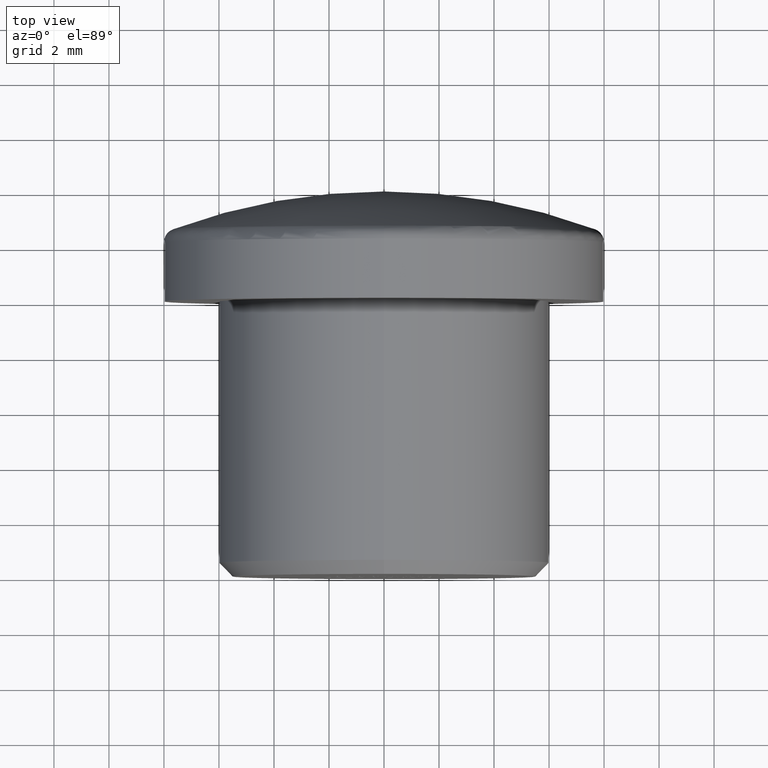
[diagram: clean part render]
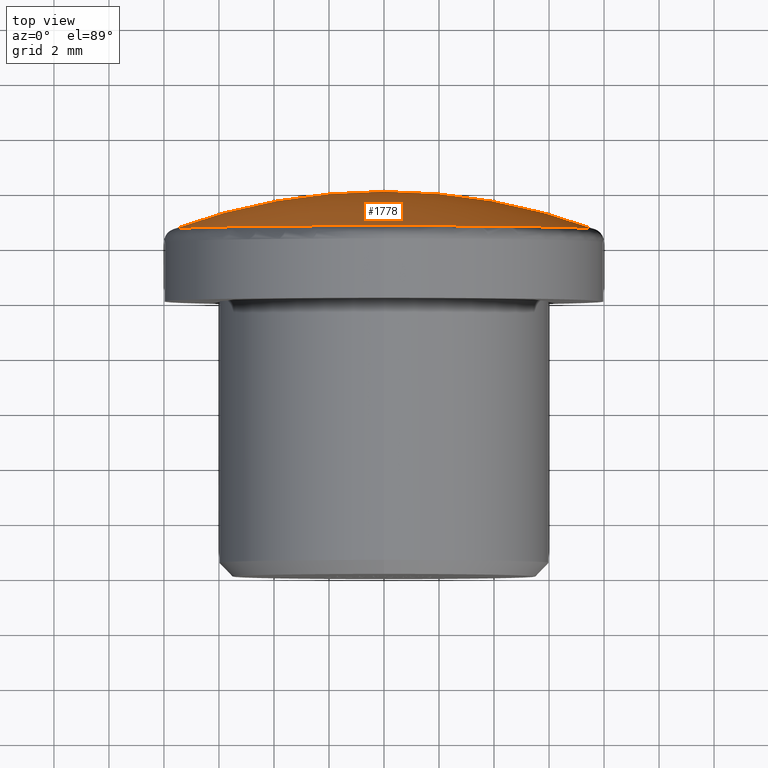
[diagram: same view with one face highlighted and labeled with its STEP entity id]
A machine part, top view. The second image highlights one B-rep face of the part: STEP entity #1778.
In plain terms, the highlighted spherical surface has radius 22.0833 mm.
Its self-contained STEP definition (entity closure, byte-faithful):
#139 = AXIS2_PLACEMENT_3D ( 'NONE', #5685, #6862, #793 ) ;
#788 = EDGE_CURVE ( 'NONE', #13998, #5774, #9928, .T. ) ;
#793 = DIRECTION ( 'NONE',  ( -1.000000000000000000, 0.0000000000000000000, 0.0000000000000000000 ) ) ;
#883 = VERTEX_POINT ( 'NONE', #5013 ) ;
#1144 = CARTESIAN_POINT ( 'NONE',  ( 0.0000000000000000000, 12.62384527988033500, 0.0000000000000000000 ) ) ;
#1391 = DIRECTION ( 'NONE',  ( 0.0000000000000000000, 0.0000000000000000000, 1.000000000000000000 ) ) ;
#1393 = AXIS2_PLACEMENT_3D ( 'NONE', #8338, #12863, #2511 ) ;
#1554 = DIRECTION ( 'NONE',  ( 0.0000000000000000000, 0.0000000000000000000, -1.000000000000000000 ) ) ;
#1778 = ADVANCED_FACE ( 'NONE', ( #10240 ), #8805, .T. ) ;
#2511 = DIRECTION ( 'NONE',  ( 1.000000000000000000, 0.0000000000000000000, -1.224646799147353200E-016 ) ) ;
#2567 = CARTESIAN_POINT ( 'NONE',  ( 0.0000000000000000000, 12.62384527988033500, 0.0000000000000000000 ) ) ;
#2645 = DIRECTION ( 'NONE',  ( 1.000000000000000000, 0.0000000000000000000, 0.0000000000000000000 ) ) ;
#3340 = ORIENTED_EDGE ( 'NONE', *, *, #12435, .T. ) ;
#3657 = EDGE_CURVE ( 'NONE', #5774, #14178, #13525, .T. ) ;
#5013 = CARTESIAN_POINT ( 'NONE',  ( 7.673745173745177600, 12.62384527988033500, 0.0000000000000000000 ) ) ;
#5024 = AXIS2_PLACEMENT_3D ( 'NONE', #1144, #8226, #12854 ) ;
#5589 = AXIS2_PLACEMENT_3D ( 'NONE', #9649, #1391, #2645 ) ;
#5685 = CARTESIAN_POINT ( 'NONE',  ( 0.0000000000000000000, -8.083333333333344600, 0.0000000000000000000 ) ) ;
#5774 = VERTEX_POINT ( 'NONE', #11785 ) ;
#5814 = CARTESIAN_POINT ( 'NONE',  ( 1.352214174058536500E-015, 13.99999999999999800, 0.0000000000000000000 ) ) ;
#6762 = ORIENTED_EDGE ( 'NONE', *, *, #788, .T. ) ;
#6862 = DIRECTION ( 'NONE',  ( 0.0000000000000000000, 0.0000000000000000000, -1.000000000000000000 ) ) ;
#6884 = EDGE_CURVE ( 'NONE', #13998, #883, #12173, .T. ) ;
#7921 = CIRCLE ( 'NONE', #5024, 7.673745173745172300 ) ;
#7940 = ORIENTED_EDGE ( 'NONE', *, *, #3657, .T. ) ;
#8226 = DIRECTION ( 'NONE',  ( 0.0000000000000000000, 1.000000000000000000, 0.0000000000000000000 ) ) ;
#8338 = CARTESIAN_POINT ( 'NONE',  ( 0.0000000000000000000, -8.083333333333344600, 0.0000000000000000000 ) ) ;
#8604 = ORIENTED_EDGE ( 'NONE', *, *, #6884, .F. ) ;
#8805 = SPHERICAL_SURFACE ( 'NONE', #5589, 22.08333333333334300 ) ;
#9649 = CARTESIAN_POINT ( 'NONE',  ( 0.0000000000000000000, -8.083333333333344600, 0.0000000000000000000 ) ) ;
#9928 = CIRCLE ( 'NONE', #1393, 22.08333333333334300 ) ;
#10240 = FACE_OUTER_BOUND ( 'NONE', #14294, .T. ) ;
#10860 = DIRECTION ( 'NONE',  ( 0.0000000000000000000, 1.000000000000000000, 0.0000000000000000000 ) ) ;
#11785 = CARTESIAN_POINT ( 'NONE',  ( -7.673745173745177600, 12.62384527988033500, 9.397627464499482400E-016 ) ) ;
#12173 = CIRCLE ( 'NONE', #139, 22.08333333333334300 ) ;
#12435 = EDGE_CURVE ( 'NONE', #14178, #883, #7921, .T. ) ;
#12854 = DIRECTION ( 'NONE',  ( 0.0000000000000000000, 0.0000000000000000000, -1.000000000000000000 ) ) ;
#12863 = DIRECTION ( 'NONE',  ( 1.224646799147353200E-016, -0.0000000000000000000, 1.000000000000000000 ) ) ;
#13409 = CARTESIAN_POINT ( 'NONE',  ( 9.597400928839150100E-016, 12.62384527988033500, 7.673745173745172300 ) ) ;
#13525 = CIRCLE ( 'NONE', #14012, 7.673745173745172300 ) ;
#13998 = VERTEX_POINT ( 'NONE', #5814 ) ;
#14012 = AXIS2_PLACEMENT_3D ( 'NONE', #2567, #10860, #1554 ) ;
#14178 = VERTEX_POINT ( 'NONE', #13409 ) ;
#14294 = EDGE_LOOP ( 'NONE', ( #8604, #6762, #7940, #3340 ) ) ;